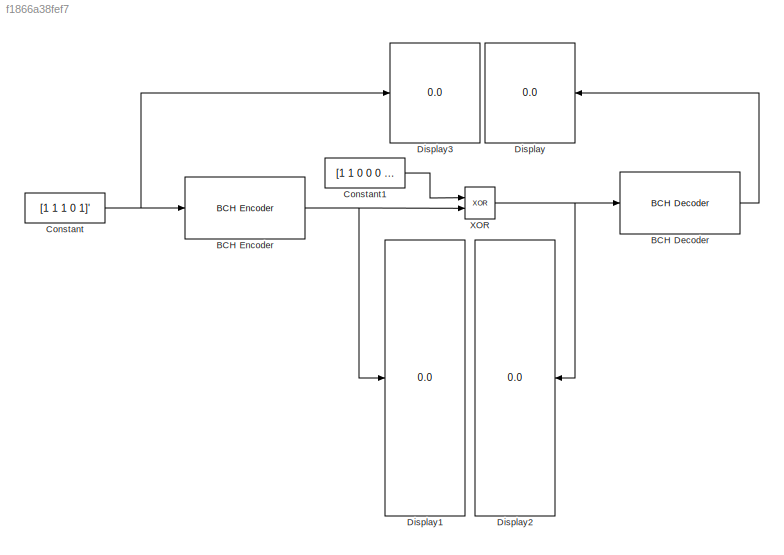
MODEL slx_f1866a38fef7
KIND model
CONFIG AbsTol = auto
CONFIG EnableMultiTasking = off
CONFIG FixedStep = auto
CONFIG MaxStep = auto
CONFIG MinStep = auto
CONFIG RelTol = 1e-3
CONFIG SampleTimeConstraint = Unconstrained
CONFIG SolverName = VariableStepAuto
CONFIG StartTime = 0.0
CONFIG StopTime = 10
BLOCK [Reference] BCH Decoder  REF=commblkcod2/BCH Decoder
  SourceBlock = commblkcod2/BCH Decoder
  SourceType = BCH Decoder
BLOCK [Reference] BCH Encoder  REF=commblkcod2/BCH Encoder
  SourceBlock = commblkcod2/BCH Encoder
  SourceType = BCH Encoder
BLOCK [Constant] Constant
  OutDataTypeStr = boolean
  Value = [1 1 1 0 1]'
BLOCK [Constant] Constant1
  OutDataTypeStr = boolean
  Value = [1 1 0 0 0 0 0 0 0 0 0 0 0 0 0]'
BLOCK [Display] Display
  Decimation = 1
BLOCK [Display] Display1
  Decimation = 1
BLOCK [Display] Display2
  Decimation = 1
BLOCK [Display] Display3
  Decimation = 1
BLOCK [Logic] XOR
  AllPortsSameDT = off
  IconShape = distinctive
  Operator = XOR
  OutDataTypeStr = boolean
LINE BCH Decoder:1 -> Display:1
NET BCH Encoder:1 -> Display1:1, XOR:2
LINE Constant1:1 -> XOR:1
NET Constant:1 -> BCH Encoder:1, Display3:1
NET XOR:1 -> BCH Decoder:1, Display2:1
note: NET lines group one-source signal fan-out (src -> all destinations, sorted); 1:1 wires keep LINE
